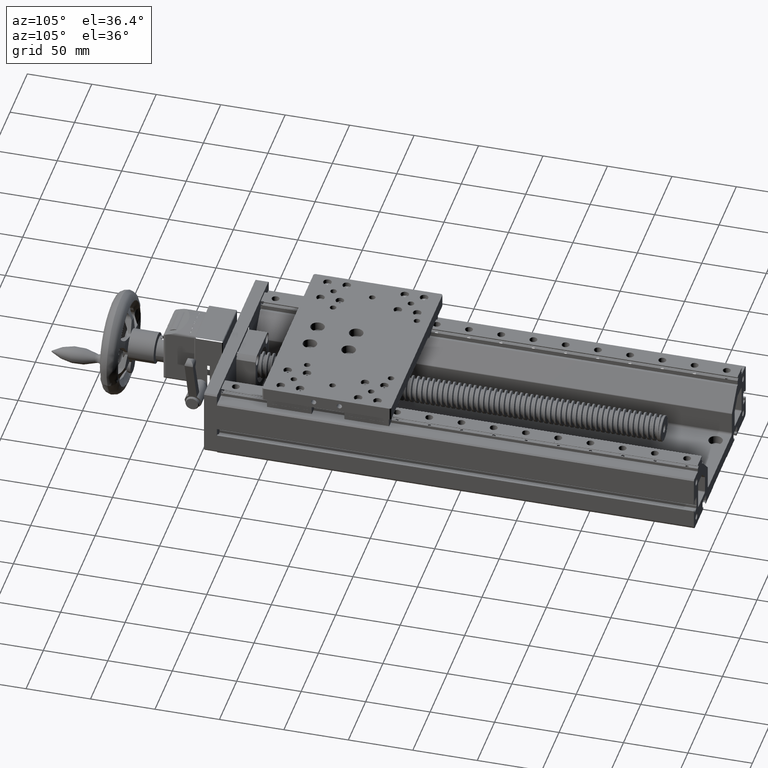
[diagram: clean part render]
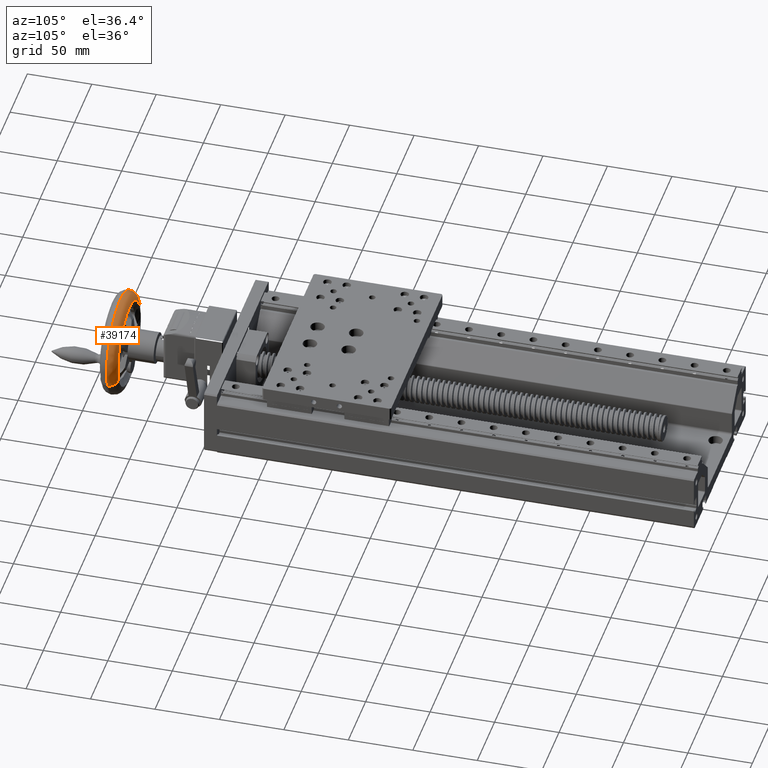
[diagram: same view with one face highlighted and labeled with its STEP entity id]
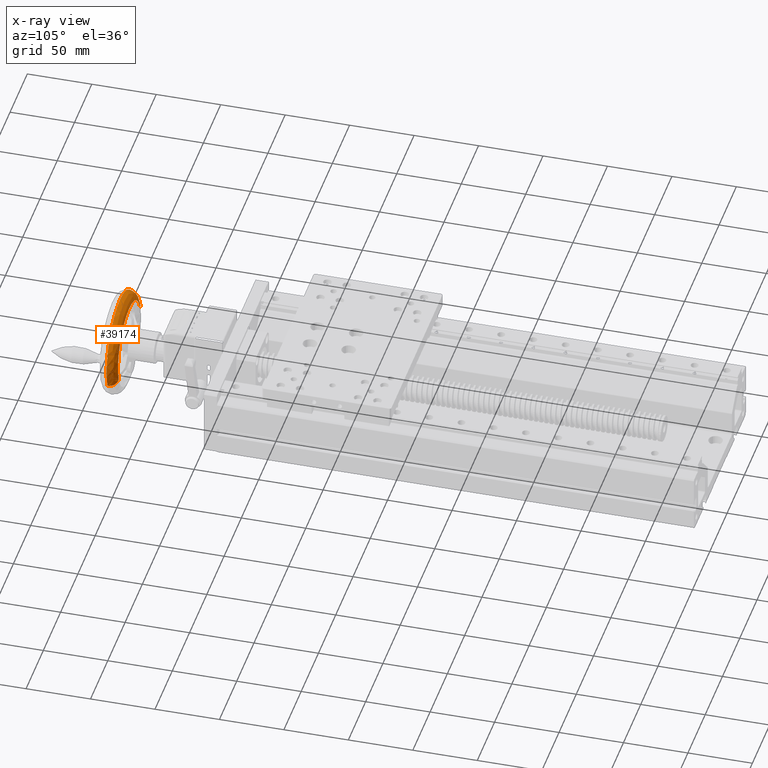
[diagram: x-ray of the same camera — body ghosted, the highlighted face saturated]
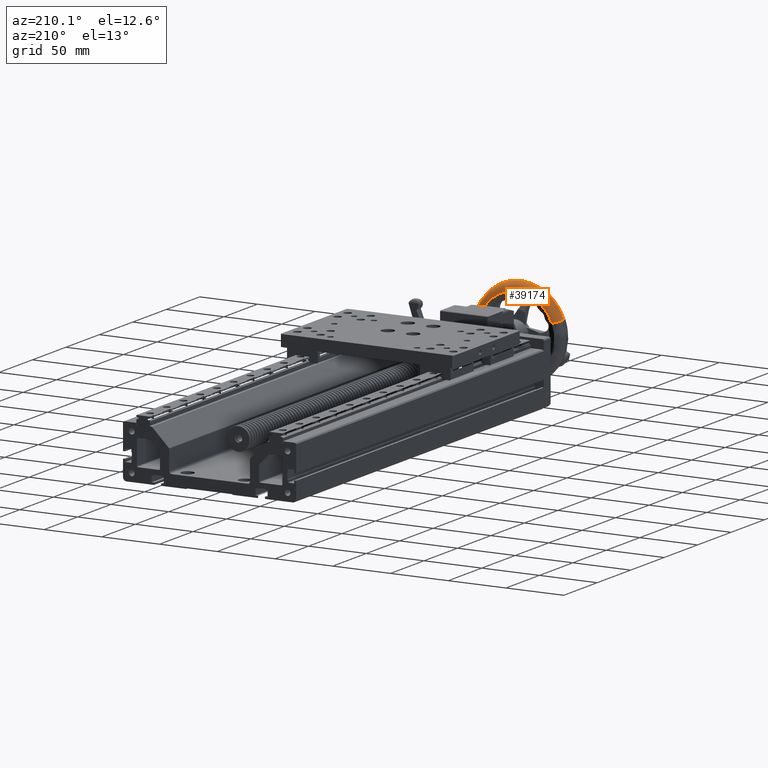
[diagram: same view with one face highlighted and labeled with its STEP entity id]
A machine part, auxiliary view. The second image highlights one B-rep face of the part: STEP entity #39174.
The next image is the same camera in x-ray: the body ghosted, the highlighted face saturated — about 0% of this face is hidden behind the body in this view.
A second angle (auxiliary view) of the same face is appended — the face is thin or edge-on in the first view.
In plain terms, the highlighted face is a freeform B-spline surface patch.
Its self-contained STEP definition (entity closure, byte-faithful):
#291 = CARTESIAN_POINT ( 'NONE',  ( 3.052712147635132212, -228.0472645979108393, 0.8606046365784193464 ) ) ;
#503 = DIRECTION ( 'NONE',  ( -0.9357330796241758453, 3.965082230804128248E-15, 0.3527089504067849601 ) ) ;
#744 = CIRCLE ( 'NONE', #25828, 7.000000000000007994 ) ;
#1382 = FACE_OUTER_BOUND ( 'NONE', #14703, .T. ) ;
#1571 = EDGE_CURVE ( 'NONE', #13023, #29232, #29063, .T. ) ;
#3110 = ORIENTED_EDGE ( 'NONE', *, *, #9876, .T. ) ;
#4854 = DIRECTION ( 'NONE',  ( -0.9357330796241757342, 4.205198804613675877E-15, 0.3527089504067850156 ) ) ;
#5723 = EDGE_CURVE ( 'NONE', #29232, #44011, #33962, .T. ) ;
#6566 = CARTESIAN_POINT ( 'NONE',  ( -58.70567110756046247, -228.0472645979105266, 24.13939536342622461 ) ) ;
#9008 = CARTESIAN_POINT ( 'NONE',  ( -37.03908663238691901, -223.9474572739711391, 101.4670043862077762 ) ) ;
#9224 = CARTESIAN_POINT ( 'NONE',  ( -65.25580266492970338, -223.9474572739710823, 26.60835801627371566 ) ) ;
#9610 = AXIS2_PLACEMENT_3D ( 'NONE', #35067, #18248, #17797 ) ;
#9876 = EDGE_CURVE ( 'NONE', #12795, #13023, #36878, .T. ) ;
#10871 =( BOUNDED_SURFACE ( )  B_SPLINE_SURFACE ( 3, 3, ( 
 ( #42412, #24743, #11709, #28763 ),
 ( #15270, #28977, #42626, #38165 ),
 ( #9224, #9008, #43296, #22256 ),
 ( #29202, #22911, #32782, #42843 ) ),
 .UNSPECIFIED., .F., .F., .T. ) 
 B_SPLINE_SURFACE_WITH_KNOTS ( ( 4, 4 ),
 ( 4, 4 ),
 ( 0.000000000000000000, 1.000000000000000000 ),
 ( 0.000000000000000000, 1.000000000000000000 ),
 .UNSPECIFIED. ) 
 GEOMETRIC_REPRESENTATION_ITEM ( )  RATIONAL_B_SPLINE_SURFACE ( (
 ( 1.000000000000000000, 0.3333333333333334259, 0.3333333333333334259, 1.000000000000000000),
 ( 0.8047884369257456427, 0.2682628123085819549, 0.2682628123085819549, 0.8047884369257456427),
 ( 0.8047884369257456427, 0.2682628123085819549, 0.2682628123085819549, 0.8047884369257456427),
 ( 1.000000000000000000, 0.3333333333333334259, 0.3333333333333334259, 1.000000000000000000) ) ) 
 REPRESENTATION_ITEM ( '' )  SURFACE ( )  );
#11147 = AXIS2_PLACEMENT_3D ( 'NONE', #12234, #43397, #4854 ) ;
#11709 = CARTESIAN_POINT ( 'NONE',  ( 26.33396839719014082, -221.0472647591212194, 62.62126954070807017 ) ) ;
#12234 = CARTESIAN_POINT ( 'NONE',  ( -27.82647947996263227, -221.0472647591210489, 12.50000000000231637 ) ) ;
#12795 = VERTEX_POINT ( 'NONE', #15952 ) ;
#13023 = VERTEX_POINT ( 'NONE', #42165 ) ;
#14703 = EDGE_LOOP ( 'NONE', ( #24183, #3110, #19850, #29828 ) ) ;
#15270 = CARTESIAN_POINT ( 'NONE',  ( -62.54340211642029601, -221.0481446440459194, 25.58596394751666026 ) ) ;
#15952 = CARTESIAN_POINT ( 'NONE',  ( 3.054117911750224845, -221.0472647591211626, 0.8600747572823426168 ) ) ;
#17326 = DIRECTION ( 'NONE',  ( -0.3527089504067849601, 1.054711873393899897E-15, -0.9357330796241759563 ) ) ;
#17797 = DIRECTION ( 'NONE',  ( -0.9357330796241757342, 4.163336342344337815E-15, 0.3527089504067850712 ) ) ;
#18248 = DIRECTION ( 'NONE',  ( 4.228820139608123808E-15, 1.000000000000000000, -4.668327421766500901E-16 ) ) ;
#19850 = ORIENTED_EDGE ( 'NONE', *, *, #1571, .T. ) ;
#20275 = DIRECTION ( 'NONE',  ( 0.3527089504067850156, -1.054711873393899699E-15, 0.9357330796241757342 ) ) ;
#21413 = CARTESIAN_POINT ( 'NONE',  ( 9.602843705004367791, -228.0472645979108108, -1.608358016269076707 ) ) ;
#22256 = CARTESIAN_POINT ( 'NONE',  ( 9.602843705004408648, -223.9474572739714233, -1.608358016269066715 ) ) ;
#22911 = CARTESIAN_POINT ( 'NONE',  ( -37.03908663238693322, -228.0472645979106119, 101.4670043862077904 ) ) ;
#24183 = ORIENTED_EDGE ( 'NONE', *, *, #34970, .F. ) ;
#24743 = CARTESIAN_POINT ( 'NONE',  ( -35.42722638623556719, -221.0472647591209352, 85.90112002614797859 ) ) ;
#25828 = AXIS2_PLACEMENT_3D ( 'NONE', #291, #17326, #31478 ) ;
#28763 = CARTESIAN_POINT ( 'NONE',  ( 3.054117911750226178, -221.0472647591211626, 0.8600747572823572717 ) ) ;
#28977 = CARTESIAN_POINT ( 'NONE',  ( -36.37147422139162245, -221.0481446440460331, 95.01980922043198063 ) ) ;
#29063 = CIRCLE ( 'NONE', #40476, 7.000000000000004441 ) ;
#29202 = CARTESIAN_POINT ( 'NONE',  ( -65.25580266492970338, -228.0472645979104982, 26.60835801627371211 ) ) ;
#29232 = VERTEX_POINT ( 'NONE', #33904 ) ;
#29828 = ORIENTED_EDGE ( 'NONE', *, *, #5723, .T. ) ;
#31478 = DIRECTION ( 'NONE',  ( 0.9357330796241758453, -3.965082230804125881E-15, -0.3527089504067848491 ) ) ;
#32782 = CARTESIAN_POINT ( 'NONE',  ( 37.81955973754715217, -228.0472645979109529, 73.25028835366499891 ) ) ;
#33904 = CARTESIAN_POINT ( 'NONE',  ( -65.25580266492968917, -228.0472645979104982, 26.60835801627371566 ) ) ;
#33962 = CIRCLE ( 'NONE', #9610, 39.99999999999999289 ) ;
#34970 = EDGE_CURVE ( 'NONE', #12795, #44011, #744, .T. ) ;
#35067 = CARTESIAN_POINT ( 'NONE',  ( -27.82647947996266424, -228.0472645979106687, 12.50000000000231992 ) ) ;
#36878 = CIRCLE ( 'NONE', #11147, 33.00150231325243055 ) ;
#38165 = CARTESIAN_POINT ( 'NONE',  ( 6.890443156495027921, -221.0481446440462605, -0.5859639475120150820 ) ) ;
#39174 = ADVANCED_FACE ( 'NONE', ( #1382 ), #10871, .T. ) ;
#40476 = AXIS2_PLACEMENT_3D ( 'NONE', #6566, #20275, #503 ) ;
#42165 = CARTESIAN_POINT ( 'NONE',  ( -58.70707687179578471, -221.0472647591209068, 24.13992524276763163 ) ) ;
#42412 = CARTESIAN_POINT ( 'NONE',  ( -58.70707687167548983, -221.0472647591208784, 24.13992524272228124 ) ) ;
#42626 = CARTESIAN_POINT ( 'NONE',  ( 33.06237105152367661, -221.0481446440463458, 68.84788132540329286 ) ) ;
#42843 = CARTESIAN_POINT ( 'NONE',  ( 9.602843705004380226, -228.0472645979108677, -1.608358016269066715 ) ) ;
#43296 = CARTESIAN_POINT ( 'NONE',  ( 37.81955973754716638, -223.9474572739715086, 73.25028835366504154 ) ) ;
#43397 = DIRECTION ( 'NONE',  ( -4.228820139608123808E-15, -1.000000000000000000, 4.668327421766500901E-16 ) ) ;
#44011 = VERTEX_POINT ( 'NONE', #21413 ) ;